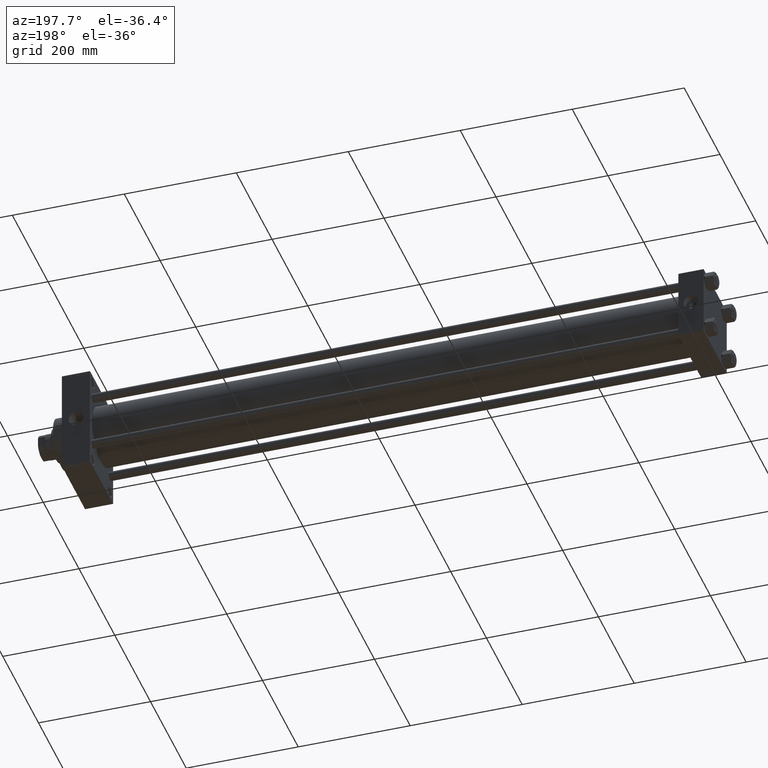
[diagram: clean part render]
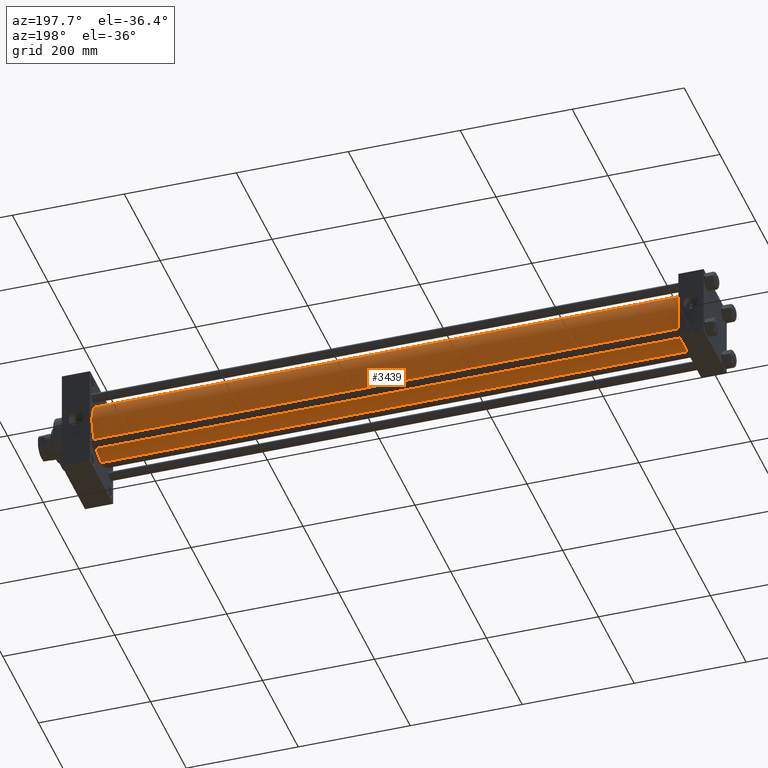
[diagram: same view with one face highlighted and labeled with its STEP entity id]
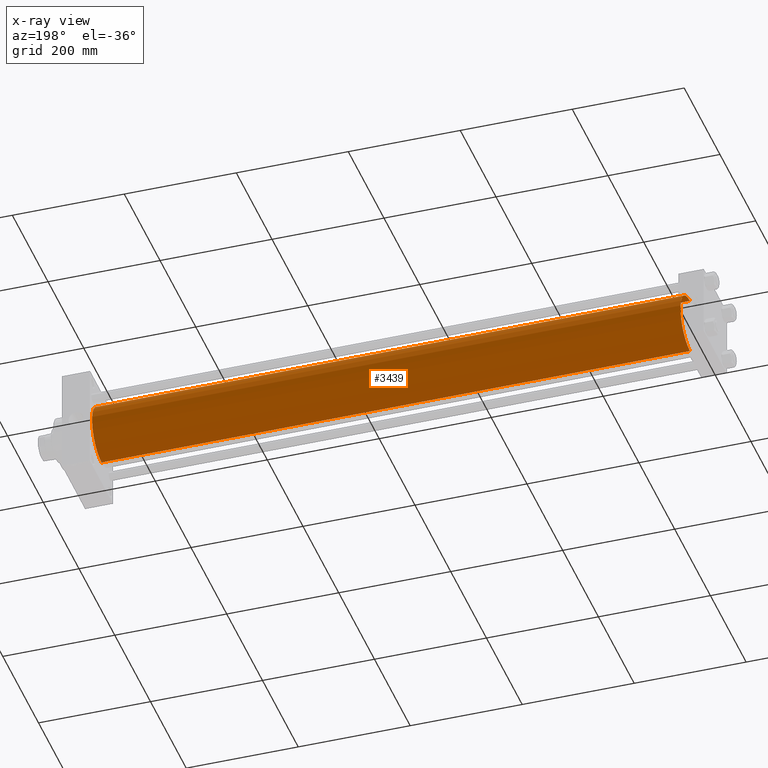
[diagram: x-ray of the same camera — body ghosted, the highlighted face saturated]
A machine part, auxiliary view. The second image highlights one B-rep face of the part: STEP entity #3439.
The next image is the same camera in x-ray: the body ghosted, the highlighted face saturated — about 0% of this face is hidden behind the body in this view.
In plain terms, the highlighted cylindrical surface (edge-blend (fillet) strip) has radius 53 mm, axis along (-1, -0, -0).
Its self-contained STEP definition (entity closure, byte-faithful):
#1231 = DIRECTION ( 'NONE',  ( 0.000000000000000000, 0.000000000000000000, -1.000000000000000000 ) ) ;
#2137 = EDGE_CURVE ( 'NONE', #11915, #3493, #26486, .T. ) ;
#2511 = LINE ( 'NONE', #46401, #21143 ) ;
#2561 = EDGE_CURVE ( 'NONE', #47469, #21102, #2511, .T. ) ;
#3439 = ADVANCED_FACE ( 'NONE', ( #7840 ), #18938, .T. ) ;
#3493 = VERTEX_POINT ( 'NONE', #16047 ) ;
#4961 = ORIENTED_EDGE ( 'NONE', *, *, #25415, .F. ) ;
#5671 = ORIENTED_EDGE ( 'NONE', *, *, #26328, .T. ) ;
#5793 = ORIENTED_EDGE ( 'NONE', *, *, #2561, .F. ) ;
#6528 = CARTESIAN_POINT ( 'NONE',  ( 44.99999999999992895, -2.602085213965210642E-15, 53.00000000000000711 ) ) ;
#7840 = FACE_OUTER_BOUND ( 'NONE', #39664, .T. ) ;
#11915 = VERTEX_POINT ( 'NONE', #41387 ) ;
#11938 = AXIS2_PLACEMENT_3D ( 'NONE', #15328, #41091, #36140 ) ;
#12688 = CIRCLE ( 'NONE', #45030, 53.00000000000000711 ) ;
#14586 = DIRECTION ( 'NONE',  ( 0.000000000000000000, 0.000000000000000000, 1.000000000000000000 ) ) ;
#15328 = CARTESIAN_POINT ( 'NONE',  ( 1095.999999999999773, -2.602085213965210642E-15, 0.000000000000000000 ) ) ;
#15902 = CARTESIAN_POINT ( 'NONE',  ( 1095.999999999999773, -2.602085213965210642E-15, 53.00000000000000711 ) ) ;
#16047 = CARTESIAN_POINT ( 'NONE',  ( 44.99999999999992895, 3.888542821515762466E-15, -53.00000000000000711 ) ) ;
#18938 = CYLINDRICAL_SURFACE ( 'NONE', #11938, 53.00000000000000711 ) ;
#21102 = VERTEX_POINT ( 'NONE', #6528 ) ;
#21143 = VECTOR ( 'NONE', #35562, 1000.000000000000000 ) ;
#25415 = EDGE_CURVE ( 'NONE', #11915, #47469, #33439, .T. ) ;
#26328 = EDGE_CURVE ( 'NONE', #3493, #21102, #12688, .T. ) ;
#26486 = LINE ( 'NONE', #30591, #42694 ) ;
#30182 = CARTESIAN_POINT ( 'NONE',  ( 44.99999999999992895, -2.602085213965210642E-15, 0.000000000000000000 ) ) ;
#30591 = CARTESIAN_POINT ( 'NONE',  ( 1095.999999999999773, 3.888542821515762466E-15, -53.00000000000000711 ) ) ;
#33439 = CIRCLE ( 'NONE', #35746, 53.00000000000000711 ) ;
#35562 = DIRECTION ( 'NONE',  ( -1.000000000000000000, -0.000000000000000000, -0.000000000000000000 ) ) ;
#35746 = AXIS2_PLACEMENT_3D ( 'NONE', #38594, #38125, #1231 ) ;
#36140 = DIRECTION ( 'NONE',  ( 0.000000000000000000, 0.000000000000000000, 1.000000000000000000 ) ) ;
#38125 = DIRECTION ( 'NONE',  ( 1.000000000000000000, 0.000000000000000000, 0.000000000000000000 ) ) ;
#38594 = CARTESIAN_POINT ( 'NONE',  ( 1095.999999999999773, -2.602085213965210642E-15, 0.000000000000000000 ) ) ;
#39664 = EDGE_LOOP ( 'NONE', ( #4961, #45280, #5671, #5793 ) ) ;
#41091 = DIRECTION ( 'NONE',  ( -1.000000000000000000, -0.000000000000000000, -0.000000000000000000 ) ) ;
#41387 = CARTESIAN_POINT ( 'NONE',  ( 1095.999999999999773, 3.888542821515762466E-15, -53.00000000000000711 ) ) ;
#41408 = DIRECTION ( 'NONE',  ( -1.000000000000000000, -0.000000000000000000, -0.000000000000000000 ) ) ;
#42694 = VECTOR ( 'NONE', #41408, 1000.000000000000000 ) ;
#45030 = AXIS2_PLACEMENT_3D ( 'NONE', #30182, #47599, #14586 ) ;
#45280 = ORIENTED_EDGE ( 'NONE', *, *, #2137, .T. ) ;
#46401 = CARTESIAN_POINT ( 'NONE',  ( 1095.999999999999773, -2.602085213965210642E-15, 53.00000000000000711 ) ) ;
#47469 = VERTEX_POINT ( 'NONE', #15902 ) ;
#47599 = DIRECTION ( 'NONE',  ( 1.000000000000000000, -0.000000000000000000, 0.000000000000000000 ) ) ;